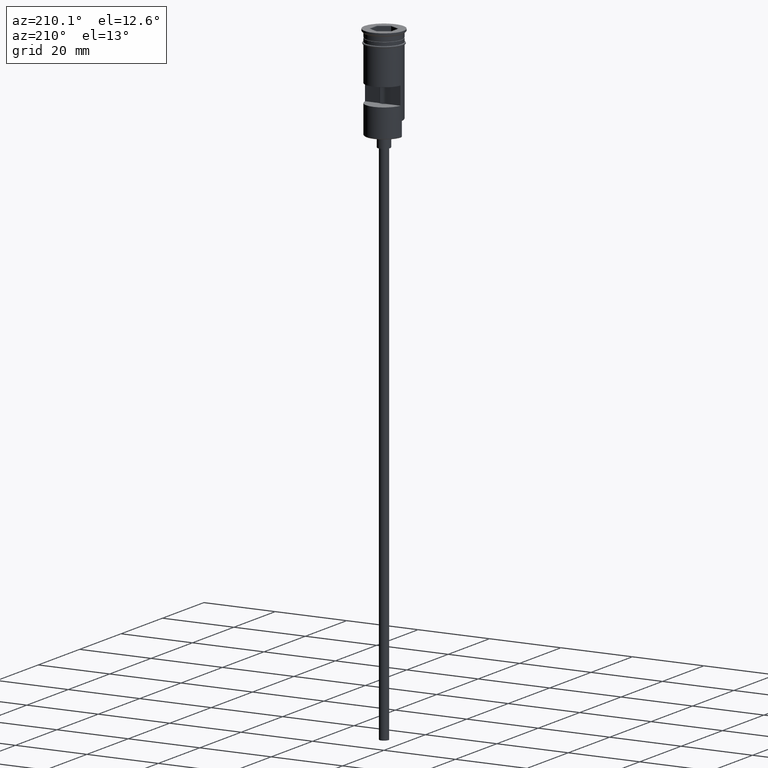
[diagram: clean part render]
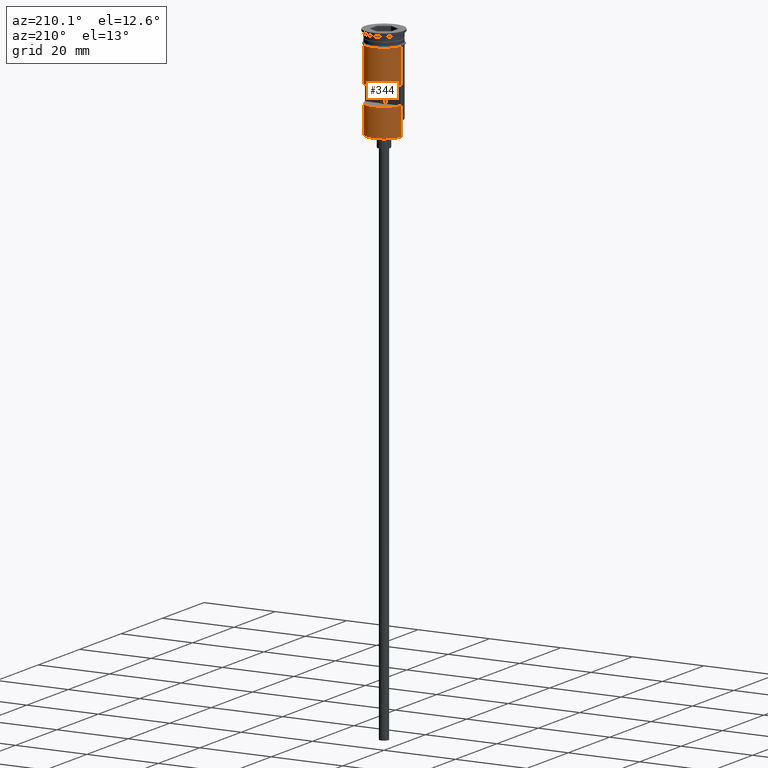
[diagram: same view with one face highlighted and labeled with its STEP entity id]
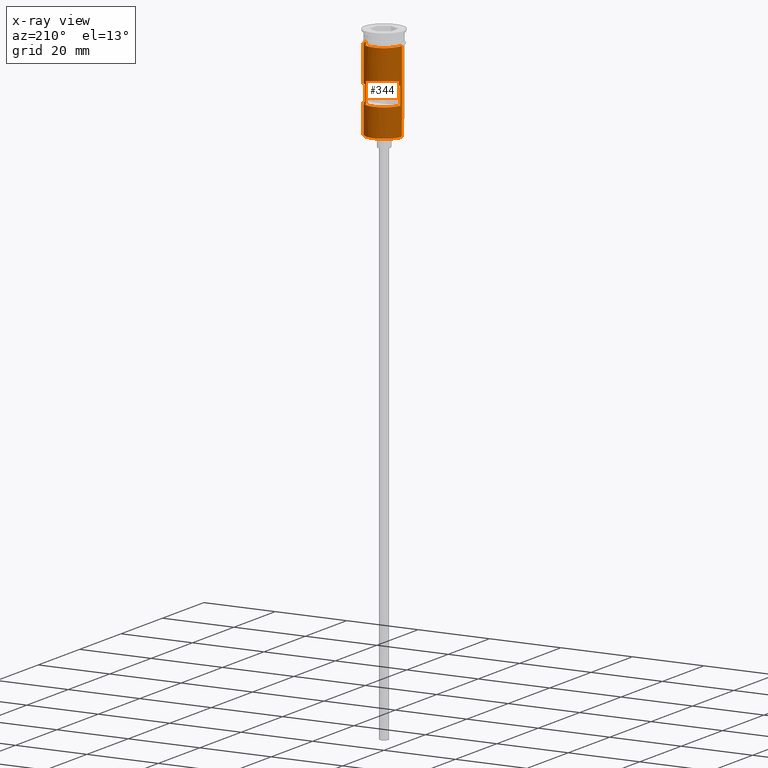
[diagram: x-ray of the same camera — body ghosted, the highlighted face saturated]
A machine part, auxiliary view. The second image highlights one B-rep face of the part: STEP entity #344.
The next image is the same camera in x-ray: the body ghosted, the highlighted face saturated — about 0% of this face is hidden behind the body in this view.
In plain terms, the highlighted cylindrical surface (edge-blend (fillet) strip) has radius 5 mm, axis along (-0, -0, 1).
Its self-contained STEP definition (entity closure, byte-faithful):
#26 = AXIS2_PLACEMENT_3D ( 'NONE', #688, #482, #804 ) ;
#39 = ORIENTED_EDGE ( 'NONE', *, *, #353, .F. ) ;
#41 = ORIENTED_EDGE ( 'NONE', *, *, #818, .F. ) ;
#71 = DIRECTION ( 'NONE',  ( -0.000000000000000000, -0.000000000000000000, 1.000000000000000000 ) ) ;
#126 = CARTESIAN_POINT ( 'NONE',  ( -4.999999999999993783, 0.000000000000000000, -22.30000000000001137 ) ) ;
#136 = LINE ( 'NONE', #852, #483 ) ;
#148 = LINE ( 'NONE', #654, #239 ) ;
#157 = CARTESIAN_POINT ( 'NONE',  ( -4.999999999999993783, 0.000000000000000000, -26.30000000000000071 ) ) ;
#235 = CARTESIAN_POINT ( 'NONE',  ( -4.963869458396339418, 0.5999999999999998668, -13.49999999999999822 ) ) ;
#239 = VECTOR ( 'NONE', #880, 1000.000000000000000 ) ;
#246 = EDGE_CURVE ( 'NONE', #1092, #914, #260, .T. ) ;
#257 = VERTEX_POINT ( 'NONE', #126 ) ;
#260 = CIRCLE ( 'NONE', #663, 4.999999999999996447 ) ;
#307 = CIRCLE ( 'NONE', #1561, 4.999999999999999112 ) ;
#318 = VERTEX_POINT ( 'NONE', #1526 ) ;
#331 = DIRECTION ( 'NONE',  ( 0.000000000000000000, 0.000000000000000000, -1.000000000000000000 ) ) ;
#344 = ADVANCED_FACE ( 'NONE', ( #887, #1506 ), #505, .T. ) ;
#353 = EDGE_CURVE ( 'NONE', #1396, #1064, #307, .T. ) ;
#362 = EDGE_CURVE ( 'NONE', #1098, #643, #370, .T. ) ;
#370 = CIRCLE ( 'NONE', #26, 4.999999999999996447 ) ;
#381 = LINE ( 'NONE', #1482, #1162 ) ;
#394 = AXIS2_PLACEMENT_3D ( 'NONE', #557, #547, #416 ) ;
#399 = CARTESIAN_POINT ( 'NONE',  ( 4.963869458396339418, 0.5999999999999998668, -18.50000000000000355 ) ) ;
#407 = DIRECTION ( 'NONE',  ( -0.000000000000000000, -0.000000000000000000, 1.000000000000000000 ) ) ;
#416 = DIRECTION ( 'NONE',  ( 1.000000000000000000, 0.000000000000000000, 0.000000000000000000 ) ) ;
#423 = LINE ( 'NONE', #551, #650 ) ;
#461 = EDGE_CURVE ( 'NONE', #1424, #318, #1536, .T. ) ;
#482 = DIRECTION ( 'NONE',  ( 0.000000000000000000, 0.000000000000000000, 1.000000000000000000 ) ) ;
#483 = VECTOR ( 'NONE', #627, 1000.000000000000000 ) ;
#505 = CYLINDRICAL_SURFACE ( 'NONE', #394, 4.999999999999996447 ) ;
#512 = CARTESIAN_POINT ( 'NONE',  ( 4.999999999999996447, 6.123233995736761352E-16, -22.30000000000001137 ) ) ;
#547 = DIRECTION ( 'NONE',  ( -0.000000000000000000, -0.000000000000000000, 1.000000000000000000 ) ) ;
#551 = CARTESIAN_POINT ( 'NONE',  ( -4.999999999999993783, 0.000000000000000000, -26.50000000000000000 ) ) ;
#557 = CARTESIAN_POINT ( 'NONE',  ( 0.000000000000000000, 0.000000000000000000, 0.000000000000000000 ) ) ;
#561 = CARTESIAN_POINT ( 'NONE',  ( 4.963869458396339418, 0.5999999999999998668, 0.000000000000000000 ) ) ;
#563 = ORIENTED_EDGE ( 'NONE', *, *, #1559, .F. ) ;
#564 = DIRECTION ( 'NONE',  ( -0.000000000000000000, -3.942553354492746489E-16, -1.000000000000000000 ) ) ;
#568 = EDGE_CURVE ( 'NONE', #257, #1064, #136, .T. ) ;
#571 = EDGE_CURVE ( 'NONE', #986, #1396, #381, .T. ) ;
#577 = CARTESIAN_POINT ( 'NONE',  ( 0.000000000000000000, 0.000000000000000000, -13.49999999999999822 ) ) ;
#614 = DIRECTION ( 'NONE',  ( -0.000000000000000000, -0.000000000000000000, 1.000000000000000000 ) ) ;
#627 = DIRECTION ( 'NONE',  ( -0.000000000000000000, -0.000000000000000000, 1.000000000000000000 ) ) ;
#643 = VERTEX_POINT ( 'NONE', #157 ) ;
#644 = EDGE_CURVE ( 'NONE', #1098, #986, #657, .T. ) ;
#650 = VECTOR ( 'NONE', #1502, 1000.000000000000000 ) ;
#654 = CARTESIAN_POINT ( 'NONE',  ( -4.963869458396339418, 0.5999999999999998668, 0.000000000000000000 ) ) ;
#657 = LINE ( 'NONE', #1385, #1009 ) ;
#663 = AXIS2_PLACEMENT_3D ( 'NONE', #1497, #743, #1006 ) ;
#682 = ORIENTED_EDGE ( 'NONE', *, *, #362, .T. ) ;
#688 = CARTESIAN_POINT ( 'NONE',  ( 0.000000000000000000, 0.000000000000000000, -26.30000000000000071 ) ) ;
#711 = CARTESIAN_POINT ( 'NONE',  ( 4.999999999999999112, 0.000000000000000000, -3.799999999999998934 ) ) ;
#743 = DIRECTION ( 'NONE',  ( 0.000000000000000000, 0.000000000000000000, 1.000000000000000000 ) ) ;
#804 = DIRECTION ( 'NONE',  ( -1.000000000000000000, 0.000000000000000000, 0.000000000000000000 ) ) ;
#811 = ORIENTED_EDGE ( 'NONE', *, *, #246, .F. ) ;
#818 = EDGE_CURVE ( 'NONE', #318, #1092, #1284, .T. ) ;
#852 = CARTESIAN_POINT ( 'NONE',  ( -4.999999999999996447, 6.123233995736762338E-16, 0.000000000000000000 ) ) ;
#880 = DIRECTION ( 'NONE',  ( -0.000000000000000000, -0.000000000000000000, 1.000000000000000000 ) ) ;
#883 = CARTESIAN_POINT ( 'NONE',  ( -4.999999999999999112, 6.123233995736765296E-16, -3.799999999999998934 ) ) ;
#887 = FACE_BOUND ( 'NONE', #997, .T. ) ;
#901 = VECTOR ( 'NONE', #331, 1000.000000000000000 ) ;
#907 = EDGE_LOOP ( 'NONE', ( #1300, #941, #39, #1364, #1258, #682 ) ) ;
#914 = VERTEX_POINT ( 'NONE', #1196 ) ;
#941 = ORIENTED_EDGE ( 'NONE', *, *, #568, .T. ) ;
#986 = VERTEX_POINT ( 'NONE', #512 ) ;
#997 = EDGE_LOOP ( 'NONE', ( #41, #1252, #563, #811 ) ) ;
#1006 = DIRECTION ( 'NONE',  ( -1.000000000000000000, 0.000000000000000000, 0.000000000000000000 ) ) ;
#1009 = VECTOR ( 'NONE', #407, 1000.000000000000000 ) ;
#1064 = VERTEX_POINT ( 'NONE', #883 ) ;
#1071 = DIRECTION ( 'NONE',  ( 1.000000000000000000, 0.000000000000000000, 0.000000000000000000 ) ) ;
#1092 = VERTEX_POINT ( 'NONE', #399 ) ;
#1098 = VERTEX_POINT ( 'NONE', #1519 ) ;
#1151 = CARTESIAN_POINT ( 'NONE',  ( 0.000000000000000000, 0.000000000000000000, -3.799999999999998934 ) ) ;
#1162 = VECTOR ( 'NONE', #614, 1000.000000000000000 ) ;
#1196 = CARTESIAN_POINT ( 'NONE',  ( -4.963869458396339418, 0.5999999999999998668, -18.50000000000000355 ) ) ;
#1201 = EDGE_CURVE ( 'NONE', #643, #257, #423, .T. ) ;
#1252 = ORIENTED_EDGE ( 'NONE', *, *, #461, .F. ) ;
#1258 = ORIENTED_EDGE ( 'NONE', *, *, #644, .F. ) ;
#1284 = LINE ( 'NONE', #561, #901 ) ;
#1288 = AXIS2_PLACEMENT_3D ( 'NONE', #577, #564, #1551 ) ;
#1300 = ORIENTED_EDGE ( 'NONE', *, *, #1201, .T. ) ;
#1364 = ORIENTED_EDGE ( 'NONE', *, *, #571, .F. ) ;
#1385 = CARTESIAN_POINT ( 'NONE',  ( 4.999999999999993783, 6.123233995736758394E-16, -26.50000000000000000 ) ) ;
#1396 = VERTEX_POINT ( 'NONE', #711 ) ;
#1424 = VERTEX_POINT ( 'NONE', #235 ) ;
#1482 = CARTESIAN_POINT ( 'NONE',  ( 4.999999999999996447, 0.000000000000000000, 0.000000000000000000 ) ) ;
#1497 = CARTESIAN_POINT ( 'NONE',  ( 0.000000000000000000, 0.000000000000000000, -18.50000000000000355 ) ) ;
#1502 = DIRECTION ( 'NONE',  ( -0.000000000000000000, -0.000000000000000000, 1.000000000000000000 ) ) ;
#1506 = FACE_OUTER_BOUND ( 'NONE', #907, .T. ) ;
#1519 = CARTESIAN_POINT ( 'NONE',  ( 4.999999999999993783, 6.123233995736758394E-16, -26.30000000000000071 ) ) ;
#1526 = CARTESIAN_POINT ( 'NONE',  ( 4.963869458396339418, 0.5999999999999998668, -13.49999999999999822 ) ) ;
#1536 = CIRCLE ( 'NONE', #1288, 4.999999999999996447 ) ;
#1551 = DIRECTION ( 'NONE',  ( 0.000000000000000000, -1.000000000000000000, 3.469446951953616654E-16 ) ) ;
#1559 = EDGE_CURVE ( 'NONE', #914, #1424, #148, .T. ) ;
#1561 = AXIS2_PLACEMENT_3D ( 'NONE', #1151, #71, #1071 ) ;